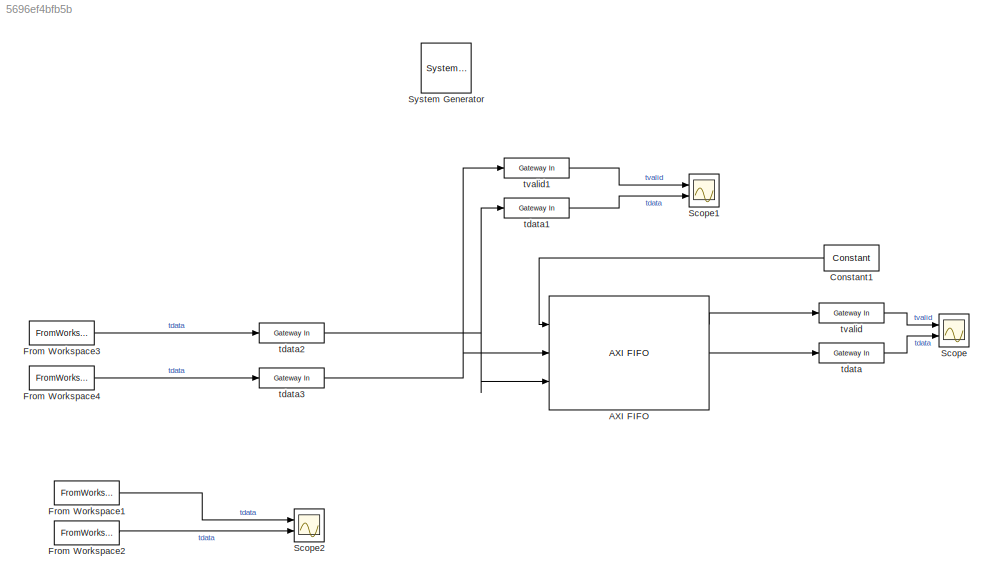
MODEL slx_5696ef4bfb5b
KIND model
CONFIG AbsTol = auto
CONFIG EnableMultiTasking = off
CONFIG FixedStep = auto
CONFIG MaxStep = auto
CONFIG MinStep = auto
CONFIG RelTol = 1e-3
CONFIG SampleTimeConstraint = Unconstrained
CONFIG SolverName = VariableStepAuto
CONFIG StartTime = 0.0
CONFIG StopTime = 10.0
BLOCK [Reference]  System Generator  REF=xbsIndex_r4/ System Generator
  AttributesFormatString = System\nGenerator
  Ports = []
  SourceBlock = xbsIndex_r4/ System Generator
  SourceType = Xilinx System Generator Block
  Tag = genX
  UserDataPersistent = on
BLOCK [Reference] AXI FIFO  REF=hdlBasic/AXI FIFO
  Ports = [3, 3]
  SourceBlock = hdlBasic/AXI FIFO
  SourceType = AXI FIFO Block Block
BLOCK [Reference] Constant1  REF=hdlBasic/Constant
  Ports = [0, 1]
  SourceBlock = hdlBasic/Constant
  SourceType = Constant Block Block
BLOCK [FromWorkspace] From Workspace1
  OutputAfterFinalValue = Setting to zero
  VariableName = tvalid
BLOCK [FromWorkspace] From Workspace2
  OutputAfterFinalValue = Setting to zero
  VariableName = data_in
BLOCK [FromWorkspace] From Workspace3
  OutputAfterFinalValue = Setting to zero
  VariableName = tvalid
BLOCK [FromWorkspace] From Workspace4
  OutputAfterFinalValue = Setting to zero
  VariableName = data_in
BLOCK [Scope] Scope
  Floating = off
  NumInputPorts = 2
  Ports = [2]
  ScopeSpecificationString = Simulink.scopes.TimeScopeBlockCfg('CurrentConfiguration', extmgr.ConfigurationSet(extmgr.Configuration('Core','General UI',true),extmgr.Configuration('Core','Source UI',true),extmgr.Configuration('Sources','WiredSimulink',true),extmgr.Configuration('Visuals','Time Domain',true),extmgr.Configuration('Tools','Plot Navigation',true),extmgr.Configuration('Tools','Measurements',true,'Version','2021a'))...<+19ch>
BLOCK [Scope] Scope1
  Floating = off
  NumInputPorts = 2
  Ports = [2]
  ScopeSpecificationString = Simulink.scopes.TimeScopeBlockCfg('CurrentConfiguration', extmgr.ConfigurationSet(extmgr.Configuration('Core','General UI',true),extmgr.Configuration('Core','Source UI',true),extmgr.Configuration('Sources','WiredSimulink',true,'DataLoggingVariableName','ScopeData1'),extmgr.Configuration('Visuals','Time Domain',true,'SerializedDisplays',{struct('MinYLimReal','-10.00000','MaxYLimReal','10.00000','YL...<+1421ch>
BLOCK [Scope] Scope2
  Floating = off
  NumInputPorts = 2
  Ports = [2]
  ScopeSpecificationString = Simulink.scopes.TimeScopeBlockCfg('CurrentConfiguration', extmgr.ConfigurationSet(extmgr.Configuration('Core','General UI',true),extmgr.Configuration('Core','Source UI',true),extmgr.Configuration('Sources','WiredSimulink',true,'DataLoggingVariableName','ScopeData2'),extmgr.Configuration('Visuals','Time Domain',true,'SerializedDisplays',{struct('MinYLimReal','-3.125','MaxYLimReal','28.125','YLabelR...<+1477ch>
BLOCK [Reference] tdata  REF=hdlBasic/Gateway In
  Ports = [1, 1]
  SourceBlock = hdlBasic/Gateway In
  SourceType = Gateway In Block
BLOCK [Reference] tdata1  REF=hdlBasic/Gateway In
  Ports = [1, 1]
  SourceBlock = hdlBasic/Gateway In
  SourceType = Gateway In Block
BLOCK [Reference] tdata2  REF=hdlBasic/Gateway In
  Ports = [1, 1]
  SourceBlock = hdlBasic/Gateway In
  SourceType = Gateway In Block
BLOCK [Reference] tdata3  REF=hdlBasic/Gateway In
  Ports = [1, 1]
  SourceBlock = hdlBasic/Gateway In
  SourceType = Gateway In Block
BLOCK [Reference] tvalid  REF=hdlBasic/Gateway In
  Ports = [1, 1]
  SourceBlock = hdlBasic/Gateway In
  SourceType = Gateway In Block
BLOCK [Reference] tvalid1  REF=hdlBasic/Gateway In
  Ports = [1, 1]
  SourceBlock = hdlBasic/Gateway In
  SourceType = Gateway In Block
LINE AXI FIFO:1 -> tvalid:1
LINE AXI FIFO:2 -> tdata:1
LINE Constant1:1 -> AXI FIFO:1
LINE From Workspace1:1 -> Scope2:1
LINE From Workspace2:1 -> Scope2:2
LINE From Workspace3:1 -> tdata2:1
LINE From Workspace4:1 -> tdata3:1
LINE tdata1:1 -> Scope1:2
NET tdata2:1 -> AXI FIFO:3, tdata1:1
NET tdata3:1 -> AXI FIFO:2, tvalid1:1
LINE tdata:1 -> Scope:2
LINE tvalid1:1 -> Scope1:1
LINE tvalid:1 -> Scope:1
note: NET lines group one-source signal fan-out (src -> all destinations, sorted); 1:1 wires keep LINE
